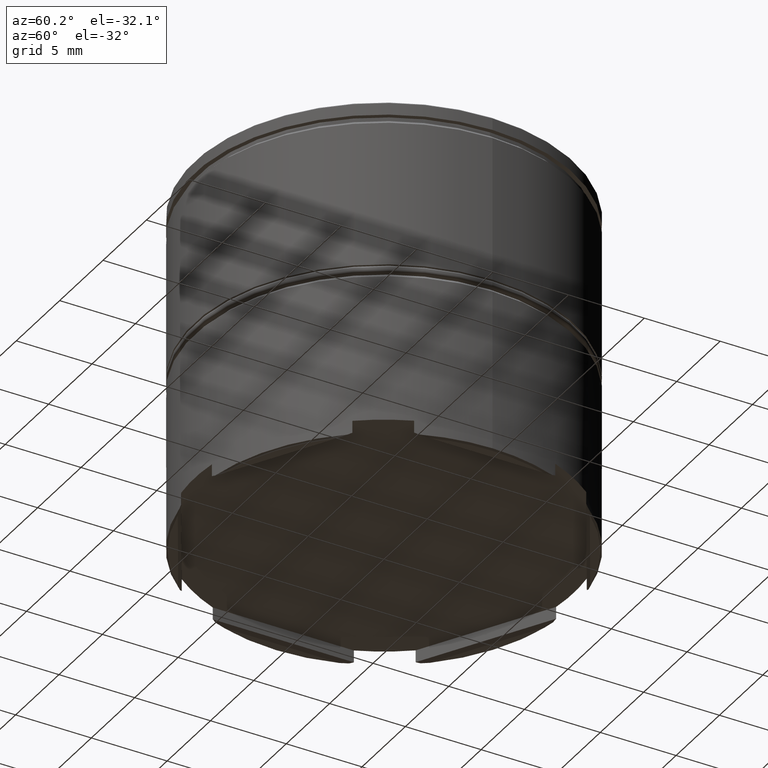
[diagram: clean part render]
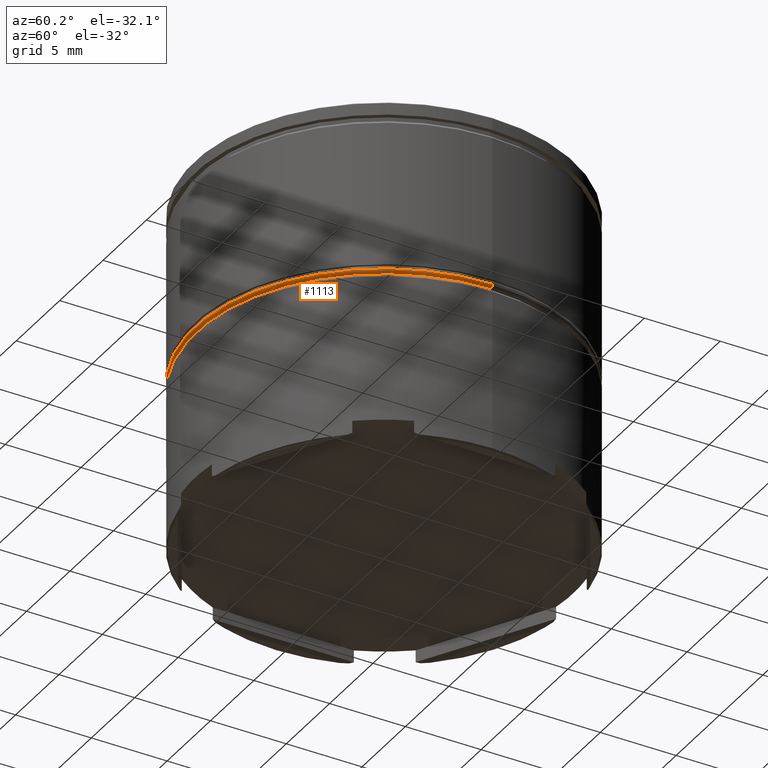
[diagram: same view with one face highlighted and labeled with its STEP entity id]
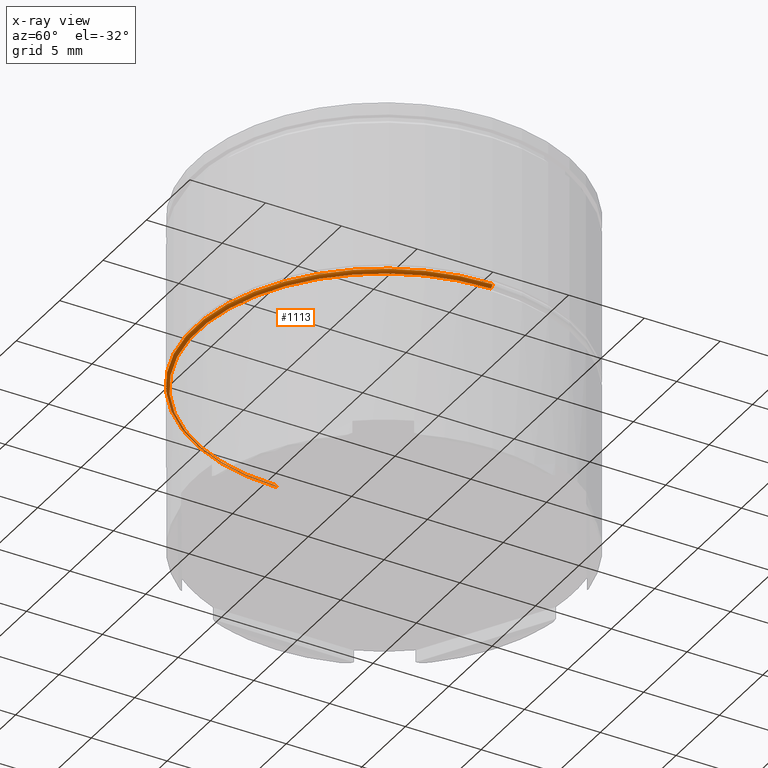
[diagram: x-ray of the same camera — body ghosted, the highlighted face saturated]
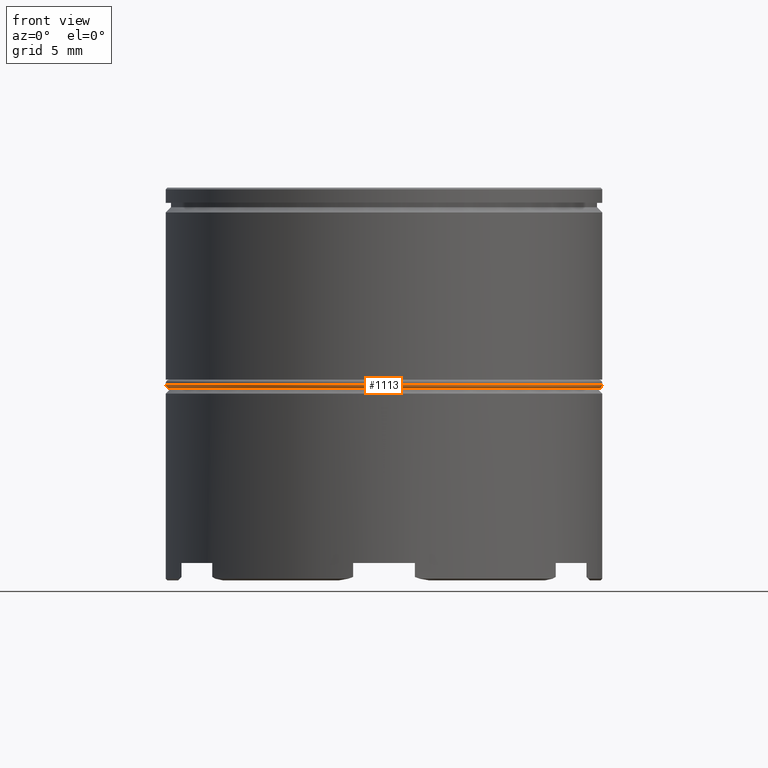
[diagram: same view with one face highlighted and labeled with its STEP entity id]
A machine part, auxiliary view. The second image highlights one B-rep face of the part: STEP entity #1113.
The next image is the same camera in x-ray: the body ghosted, the highlighted face saturated — about 10% of this face is hidden behind the body in this view.
A second angle (front view) of the same face is appended — the face is thin or edge-on in the first view.
In plain terms, the highlighted toroidal blend (fillet) surface has major radius 12.3 mm and minor (blend) radius 0.2 mm.
Its self-contained STEP definition (entity closure, byte-faithful):
#64 = CARTESIAN_POINT ( 'NONE',  ( 0.000000000000000000, 0.000000000000000000, -11.29999999999999716 ) ) ;
#113 = TOROIDAL_SURFACE ( 'NONE', #694, 12.30000000000000071, 0.2000000000000000111 ) ;
#125 = CARTESIAN_POINT ( 'NONE',  ( -12.30000000000000071, 1.518562030942717967E-15, -11.49999999999999822 ) ) ;
#135 = DIRECTION ( 'NONE',  ( 1.000000000000000000, 0.000000000000000000, 0.000000000000000000 ) ) ;
#155 = FACE_OUTER_BOUND ( 'NONE', #419, .T. ) ;
#177 = DIRECTION ( 'NONE',  ( 0.000000000000000000, 0.000000000000000000, -1.000000000000000000 ) ) ;
#207 = DIRECTION ( 'NONE',  ( -1.000000000000000000, 1.224646799147353207E-16, 0.000000000000000000 ) ) ;
#239 = ORIENTED_EDGE ( 'NONE', *, *, #1387, .F. ) ;
#243 = CARTESIAN_POINT ( 'NONE',  ( 0.000000000000000000, 0.000000000000000000, -11.49999999999999822 ) ) ;
#277 = AXIS2_PLACEMENT_3D ( 'NONE', #546, #311, #177 ) ;
#289 = ORIENTED_EDGE ( 'NONE', *, *, #1315, .T. ) ;
#311 = DIRECTION ( 'NONE',  ( 0.000000000000000000, -1.000000000000000000, 0.000000000000000000 ) ) ;
#327 = AXIS2_PLACEMENT_3D ( 'NONE', #243, #875, #135 ) ;
#391 = DIRECTION ( 'NONE',  ( 1.000000000000000000, 0.000000000000000000, 0.000000000000000000 ) ) ;
#419 = EDGE_LOOP ( 'NONE', ( #1191, #976, #289, #239 ) ) ;
#443 = AXIS2_PLACEMENT_3D ( 'NONE', #1321, #1063, #207 ) ;
#546 = CARTESIAN_POINT ( 'NONE',  ( 12.30000000000000071, 0.000000000000000000, -11.29999999999999716 ) ) ;
#676 = VERTEX_POINT ( 'NONE', #125 ) ;
#694 = AXIS2_PLACEMENT_3D ( 'NONE', #1266, #1010, #391 ) ;
#707 = VERTEX_POINT ( 'NONE', #1614 ) ;
#875 = DIRECTION ( 'NONE',  ( -0.000000000000000000, -0.000000000000000000, -1.000000000000000000 ) ) ;
#879 = CARTESIAN_POINT ( 'NONE',  ( 12.50000000000000000, 0.000000000000000000, -11.29999999999999716 ) ) ;
#929 = DIRECTION ( 'NONE',  ( 0.000000000000000000, 0.000000000000000000, 1.000000000000000000 ) ) ;
#948 = VERTEX_POINT ( 'NONE', #1182 ) ;
#976 = ORIENTED_EDGE ( 'NONE', *, *, #1173, .F. ) ;
#1010 = DIRECTION ( 'NONE',  ( 0.000000000000000000, 0.000000000000000000, 1.000000000000000000 ) ) ;
#1063 = DIRECTION ( 'NONE',  ( 1.224646799147353207E-16, 1.000000000000000000, -0.000000000000000000 ) ) ;
#1113 = ADVANCED_FACE ( 'NONE', ( #155 ), #113, .T. ) ;
#1173 = EDGE_CURVE ( 'NONE', #707, #676, #1581, .T. ) ;
#1182 = CARTESIAN_POINT ( 'NONE',  ( -12.50000000000000000, 1.530808498934191521E-15, -11.29999999999999716 ) ) ;
#1183 = DIRECTION ( 'NONE',  ( 1.000000000000000000, 0.000000000000000000, 0.000000000000000000 ) ) ;
#1190 = CIRCLE ( 'NONE', #1607, 12.50000000000000000 ) ;
#1191 = ORIENTED_EDGE ( 'NONE', *, *, #1523, .F. ) ;
#1266 = CARTESIAN_POINT ( 'NONE',  ( 0.000000000000000000, 0.000000000000000000, -11.29999999999999716 ) ) ;
#1309 = CIRCLE ( 'NONE', #443, 0.2000000000000005107 ) ;
#1315 = EDGE_CURVE ( 'NONE', #707, #1615, #1534, .T. ) ;
#1321 = CARTESIAN_POINT ( 'NONE',  ( -12.30000000000000071, 1.506315562951244413E-15, -11.29999999999999716 ) ) ;
#1387 = EDGE_CURVE ( 'NONE', #948, #1615, #1190, .T. ) ;
#1523 = EDGE_CURVE ( 'NONE', #676, #948, #1309, .T. ) ;
#1534 = CIRCLE ( 'NONE', #277, 0.2000000000000005107 ) ;
#1581 = CIRCLE ( 'NONE', #327, 12.30000000000000071 ) ;
#1607 = AXIS2_PLACEMENT_3D ( 'NONE', #64, #929, #1183 ) ;
#1614 = CARTESIAN_POINT ( 'NONE',  ( 12.30000000000000071, 0.000000000000000000, -11.49999999999999822 ) ) ;
#1615 = VERTEX_POINT ( 'NONE', #879 ) ;